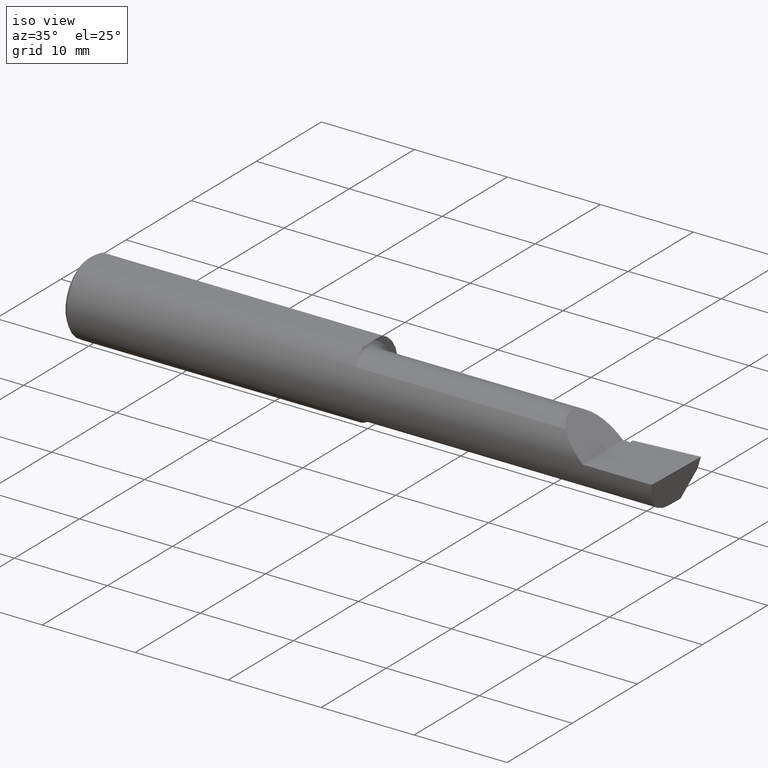
[diagram: clean part render]
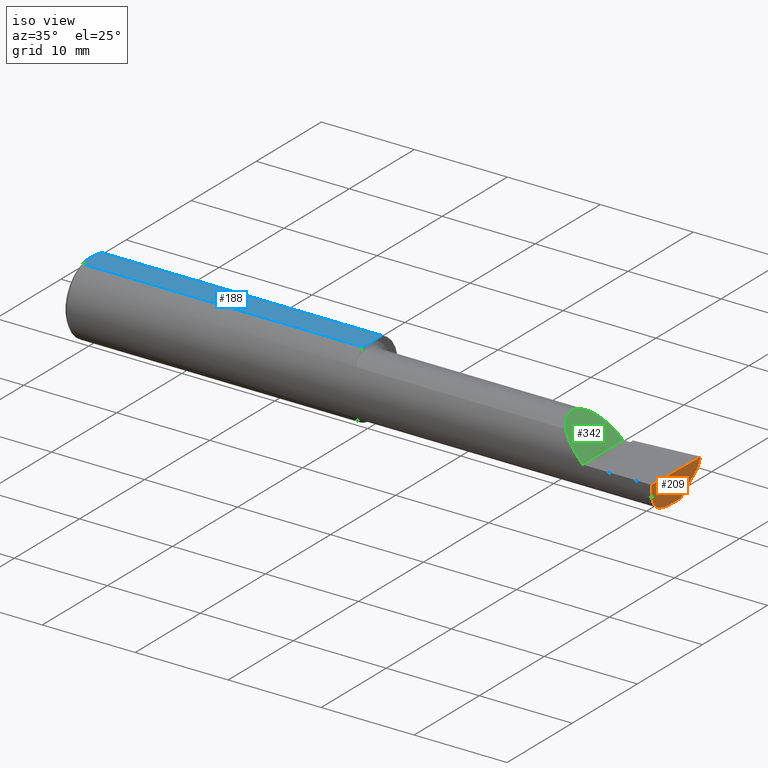
[diagram: same view with three faces highlighted in distinct colors, each labeled with its STEP entity id]
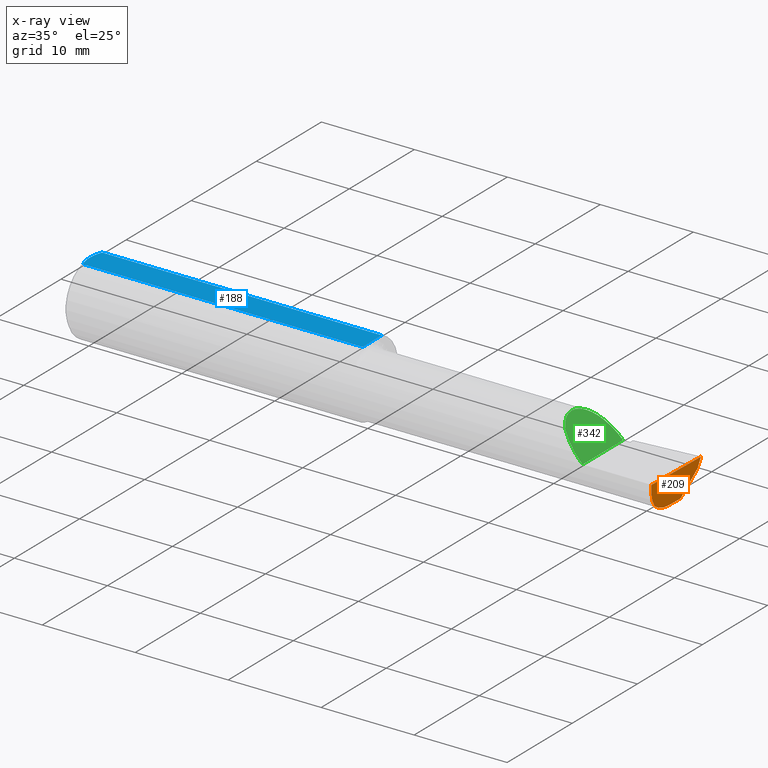
[diagram: x-ray of the same camera — body ghosted, the three highlighted faces saturated]
A machine part, iso view with three faces highlighted in distinct colors.
The next image is the same camera in x-ray (body ghosted, the three faces saturated) — at least one of them is partly hidden behind the body in this view.
Their STEP definitions:

[orange] entity #209 — the highlighted planar face has unit normal (-0.9922, 0.026, 0.1219).
#1 = FACE_OUTER_BOUND ( 'NONE', #441, .T. ) ;
#33 = CARTESIAN_POINT ( 'NONE',  ( 2.492458454588073469, -0.1561000000000000165, 6.904580041863401145E-17 ) ) ;
#44 = CARTESIAN_POINT ( 'NONE',  ( 2.481412959734991652, -0.1221769230769231412, -0.09715971113303906170 ) ) ;
#54 = CARTESIAN_POINT ( 'NONE',  ( 2.490006449155409474, -0.2497383096613859377, 6.928474670396028486E-17 ) ) ;
#85 = EDGE_CURVE ( 'NONE', #530, #246, #272, .T. ) ;
#89 = LINE ( 'NONE', #137, #306 ) ;
#95 = DIRECTION ( 'NONE',  ( 0.1219104985252713186, 0.000000000000000000, 0.9925410975618690346 ) ) ;
#132 = LINE ( 'NONE', #231, #575 ) ;
#137 = CARTESIAN_POINT ( 'NONE',  ( 2.494792847285499882, 0.1204783345406542638, -0.03995929106164489847 ) ) ;
#140 = ORIENTED_EDGE ( 'NONE', *, *, #618, .F. ) ;
#141 = DIRECTION ( 'NONE',  ( -0.02617694830786745225, -0.9996573249755573709, 0.000000000000000000 ) ) ;
#144 = ORIENTED_EDGE ( 'NONE', *, *, #392, .F. ) ;
#148 = ORIENTED_EDGE ( 'NONE', *, *, #285, .T. ) ;
#155 = CARTESIAN_POINT ( 'NONE',  ( 2.479563421481711494, -0.09875439382140582811, -0.1172113754642091638 ) ) ;
#177 = VECTOR ( 'NONE', #305, 39.37007874015748143 ) ;
#190 = CARTESIAN_POINT ( 'NONE',  ( 2.477531540255503373, -0.09048025621357887183, -0.1355180469804228571 ) ) ;
#195 = CARTESIAN_POINT ( 'NONE',  ( 2.500188977433809523, 0.1323605994646679385, 0.001440373173038011871 ) ) ;
#200 = ORIENTED_EDGE ( 'NONE', *, *, #85, .T. ) ;
#204 = VERTEX_POINT ( 'NONE', #388 ) ;
#209 = ADVANCED_FACE ( 'NONE', ( #1 ), #541, .F. ) ;
#231 = CARTESIAN_POINT ( 'NONE',  ( 2.479829128617947465, -0.03847180714400752488, -0.1279000000000000137 ) ) ;
#235 = CARTESIAN_POINT ( 'NONE',  ( 2.494489586192890851, 0.1184693294778164652, -0.04199999999999998873 ) ) ;
#241 = AXIS2_PLACEMENT_3D ( 'NONE', #190, #586, #95 ) ;
#246 = VERTEX_POINT ( 'NONE', #560 ) ;
#249 = EDGE_CURVE ( 'NONE', #393, #246, #252, .T. ) ;
#252 = LINE ( 'NONE', #54, #177 ) ;
#253 = VERTEX_POINT ( 'NONE', #556 ) ;
#272 = LINE ( 'NONE', #195, #511 ) ;
#277 = CARTESIAN_POINT ( 'NONE',  ( 2.488081956929748539, -0.1561000000000000443, -0.03563149886036989789 ) ) ;
#285 = EDGE_CURVE ( 'NONE', #579, #204, #328, .T. ) ;
#287 = DIRECTION ( 'NONE',  ( 0.1053106618241693021, 0.6976485211320172519, 0.7086580314005230807 ) ) ;
#305 = DIRECTION ( 'NONE',  ( 0.02617694830786745225, 0.9996573249755573709, -2.550926060774605708E-18 ) ) ;
#306 = VECTOR ( 'NONE', #287, 39.37007874015748143 ) ;
#310 =( BOUNDED_CURVE ( )  B_SPLINE_CURVE ( 3, ( #617, #525, #277, #33 ),
 .UNSPECIFIED., .F., .F. ) 
 B_SPLINE_CURVE_WITH_KNOTS ( ( 4, 4 ),
 ( 0.6889164556964199049, 1.360746882514756173 ),
 .UNSPECIFIED. ) 
 CURVE ( )  GEOMETRIC_REPRESENTATION_ITEM ( )  RATIONAL_B_SPLINE_CURVE ( ( 1.000000000000000000, 0.9627393467969931340, 0.9627393467969931340, 1.000000000000000000 ) ) 
 REPRESENTATION_ITEM ( '' )  );
#326 = ORIENTED_EDGE ( 'NONE', *, *, #249, .F. ) ;
#328 =( BOUNDED_CURVE ( )  B_SPLINE_CURVE ( 3, ( #603, #155, #400, #395 ),
 .UNSPECIFIED., .F., .F. ) 
 B_SPLINE_CURVE_WITH_KNOTS ( ( 4, 4 ),
 ( 5.785218908160204343, 6.493234751459727505 ),
 .UNSPECIFIED. ) 
 CURVE ( )  GEOMETRIC_REPRESENTATION_ITEM ( )  RATIONAL_B_SPLINE_CURVE ( ( 1.000000000000000000, 0.9586605761426438832, 0.9586605761426438832, 1.000000000000000000 ) ) 
 REPRESENTATION_ITEM ( '' )  );
#333 = DIRECTION ( 'NONE',  ( 0.1240019227989220402, 0.3022330132596647290, 0.9451342385281328307 ) ) ;
#388 = CARTESIAN_POINT ( 'NONE',  ( 2.479815297401247065, -0.03900000000000000688, -0.1279000000000000137 ) ) ;
#392 = EDGE_CURVE ( 'NONE', #579, #393, #310, .T. ) ;
#393 = VERTEX_POINT ( 'NONE', #572 ) ;
#395 = CARTESIAN_POINT ( 'NONE',  ( 2.479815297401247065, -0.03900000000000000688, -0.1279000000000000137 ) ) ;
#400 = CARTESIAN_POINT ( 'NONE',  ( 2.479007902537362362, -0.06983316589608469516, -0.1279000000000000137 ) ) ;
#419 = ORIENTED_EDGE ( 'NONE', *, *, #528, .T. ) ;
#441 = EDGE_LOOP ( 'NONE', ( #148, #140, #419, #200, #326, #144 ) ) ;
#511 = VECTOR ( 'NONE', #333, 39.37007874015748143 ) ;
#525 = CARTESIAN_POINT ( 'NONE',  ( 2.484257628330379664, -0.1443546689866653798, -0.06927151833753047994 ) ) ;
#528 = EDGE_CURVE ( 'NONE', #253, #530, #89, .T. ) ;
#530 = VERTEX_POINT ( 'NONE', #235 ) ;
#541 = PLANE ( 'NONE',  #241 ) ;
#556 = CARTESIAN_POINT ( 'NONE',  ( 2.481724351834623477, 0.03390384752482933362, -0.1279000000000000137 ) ) ;
#560 = CARTESIAN_POINT ( 'NONE',  ( 2.500000000000007550, 0.1319000000000240536, 7.610330918600022695E-14 ) ) ;
#572 = CARTESIAN_POINT ( 'NONE',  ( 2.492458454588073469, -0.1561000000000000165, 6.904580041863401145E-17 ) ) ;
#575 = VECTOR ( 'NONE', #141, 39.37007874015748854 ) ;
#579 = VERTEX_POINT ( 'NONE', #44 ) ;
#586 = DIRECTION ( 'NONE',  ( -0.9922060308645493931, 0.02598182930468769317, 0.1218693434051359437 ) ) ;
#603 = CARTESIAN_POINT ( 'NONE',  ( 2.481412959734991652, -0.1221769230769231412, -0.09715971113303906170 ) ) ;
#617 = CARTESIAN_POINT ( 'NONE',  ( 2.481412959734991652, -0.1221769230769231412, -0.09715971113303906170 ) ) ;
#618 = EDGE_CURVE ( 'NONE', #253, #204, #132, .T. ) ;

[blue] entity #188 — the highlighted planar face has unit normal (0, -0, -1).
#8 = VERTEX_POINT ( 'NONE', #558 ) ;
#10 = CARTESIAN_POINT ( 'NONE',  ( 0.01499999999999999424, 0.05756040305626779902, 0.1450999999999999512 ) ) ;
#13 = CARTESIAN_POINT ( 'NONE',  ( 1.199999999999999956, 0.2061000000000000332, 0.1450999999999999512 ) ) ;
#25 = ORIENTED_EDGE ( 'NONE', *, *, #457, .F. ) ;
#30 = CARTESIAN_POINT ( 'NONE',  ( 1.200682916200748851, -0.01309664387410302590, 0.1451000000000000068 ) ) ;
#31 = VERTEX_POINT ( 'NONE', #113 ) ;
#42 = CARTESIAN_POINT ( 'NONE',  ( 2.500000000000000000, 0.2061000000000000332, 0.1450999999999999512 ) ) ;
#47 = ORIENTED_EDGE ( 'NONE', *, *, #297, .F. ) ;
#60 = DIRECTION ( 'NONE',  ( -6.829619984160658046E-18, -1.000000000000000000, 1.656870447394628111E-16 ) ) ;
#66 = LINE ( 'NONE', #13, #81 ) ;
#81 = VECTOR ( 'NONE', #60, 39.37007874015748143 ) ;
#87 = CARTESIAN_POINT ( 'NONE',  ( 0.005011318927233133005, -0.01959047621504276041, 0.1450999999999999790 ) ) ;
#113 = CARTESIAN_POINT ( 'NONE',  ( 0.01499999999999999424, 0.05756040305626779902, 0.1450999999999999512 ) ) ;
#116 = EDGE_CURVE ( 'NONE', #31, #230, #138, .T. ) ;
#117 = DIRECTION ( 'NONE',  ( -1.000000000000000000, -0.000000000000000000, -0.000000000000000000 ) ) ;
#138 = LINE ( 'NONE', #471, #469 ) ;
#139 = EDGE_CURVE ( 'NONE', #594, #238, #376, .T. ) ;
#142 = DIRECTION ( 'NONE',  ( 0.000000000000000000, -1.656870447394628111E-16, -1.000000000000000000 ) ) ;
#168 = LINE ( 'NONE', #214, #323 ) ;
#183 = CARTESIAN_POINT ( 'NONE',  ( 1.199999999999999734, -0.001993101985760211466, 0.1450999999999999790 ) ) ;
#188 = ADVANCED_FACE ( 'NONE', ( #322 ), #482, .F. ) ;
#191 = ORIENTED_EDGE ( 'NONE', *, *, #116, .F. ) ;
#192 = CARTESIAN_POINT ( 'NONE',  ( 1.199999999999999956, 0.009212031693343570790, 0.1450999999999999790 ) ) ;
#194 = ORIENTED_EDGE ( 'NONE', *, *, #335, .F. ) ;
#207 = EDGE_LOOP ( 'NONE', ( #542, #47, #191, #194, #488, #25 ) ) ;
#214 = CARTESIAN_POINT ( 'NONE',  ( 0.000000000000000000, -0.05756040305626774350, 0.1451000000000000068 ) ) ;
#230 = VERTEX_POINT ( 'NONE', #352 ) ;
#238 = VERTEX_POINT ( 'NONE', #552 ) ;
#242 = CARTESIAN_POINT ( 'NONE',  ( 1.199999999999999956, 0.009212031693343570790, 0.1450999999999999790 ) ) ;
#271 = CARTESIAN_POINT ( 'NONE',  ( 0.01499999999999999424, -0.05756040305626774350, 0.1451000000000000068 ) ) ;
#297 = EDGE_CURVE ( 'NONE', #230, #594, #66, .T. ) ;
#322 = FACE_OUTER_BOUND ( 'NONE', #207, .T. ) ;
#323 = VECTOR ( 'NONE', #117, 39.37007874015748143 ) ;
#335 = EDGE_CURVE ( 'NONE', #8, #31, #501, .T. ) ;
#352 = CARTESIAN_POINT ( 'NONE',  ( 1.199999999999999956, 0.05756040305626777820, 0.1450999999999999512 ) ) ;
#355 = CARTESIAN_POINT ( 'NONE',  ( 0.01158831187866387301, 0.04830813087846569376, 0.1450999999999999512 ) ) ;
#376 = B_SPLINE_CURVE_WITH_KNOTS ( 'NONE', 3,
 ( #242, #183, #30, #519, #532, #538 ),
 .UNSPECIFIED., .F., .F.,
 ( 4, 2, 4 ),
 ( 0.01125575560715749712, 0.01210273852957650942, 0.01294972145199552345 ),
 .UNSPECIFIED. ) ;
#378 = CARTESIAN_POINT ( 'NONE',  ( 0.01499999999999999424, -0.05756040305626774350, 0.1451000000000000068 ) ) ;
#407 = CARTESIAN_POINT ( 'NONE',  ( 0.008823987512428459190, 0.03887788046871686748, 0.1450999999999999790 ) ) ;
#433 = CARTESIAN_POINT ( 'NONE',  ( 0.01161840624095555018, -0.04838974479540033430, 0.1451000000000000345 ) ) ;
#435 = AXIS2_PLACEMENT_3D ( 'NONE', #42, #142, #486 ) ;
#444 = DIRECTION ( 'NONE',  ( 1.000000000000000000, 0.000000000000000000, 0.000000000000000000 ) ) ;
#446 = CARTESIAN_POINT ( 'NONE',  ( 0.004000000000000188301, 0.009855731042683129120, 0.1450999999999999790 ) ) ;
#457 = EDGE_CURVE ( 'NONE', #238, #515, #168, .T. ) ;
#459 = CARTESIAN_POINT ( 'NONE',  ( 0.005030132703184950031, 0.01970541148932063169, 0.1451000000000000068 ) ) ;
#469 = VECTOR ( 'NONE', #444, 39.37007874015748143 ) ;
#471 = CARTESIAN_POINT ( 'NONE',  ( 0.000000000000000000, 0.05756040305626779902, 0.1450999999999999512 ) ) ;
#482 = PLANE ( 'NONE',  #435 ) ;
#485 = CARTESIAN_POINT ( 'NONE',  ( 0.004000000000000238608, 1.884449684559922719E-17, 0.1450999999999999790 ) ) ;
#486 = DIRECTION ( 'NONE',  ( 0.000000000000000000, 1.000000000000000000, -1.656870447394628111E-16 ) ) ;
#488 = ORIENTED_EDGE ( 'NONE', *, *, #547, .F. ) ;
#501 = B_SPLINE_CURVE_WITH_KNOTS ( 'NONE', 3,
 ( #505, #446, #459, #407, #355, #10 ),
 .UNSPECIFIED., .F., .F.,
 ( 4, 2, 4 ),
 ( 0.002889203944960327779, 0.003632851267233511670, 0.004376498589506695562 ),
 .UNSPECIFIED. ) ;
#505 = CARTESIAN_POINT ( 'NONE',  ( 0.004000000000000238608, 1.884449684559922719E-17, 0.1450999999999999790 ) ) ;
#515 = VERTEX_POINT ( 'NONE', #271 ) ;
#519 = CARTESIAN_POINT ( 'NONE',  ( 1.201345152486867685, -0.03531866109846591717, 0.1450999999999999790 ) ) ;
#522 = B_SPLINE_CURVE_WITH_KNOTS ( 'NONE', 3,
 ( #378, #433, #585, #87, #622, #485 ),
 .UNSPECIFIED., .F., .F.,
 ( 4, 2, 4 ),
 ( 0.001402484879066372495, 0.002145844412013350570, 0.002889203944960327779 ),
 .UNSPECIFIED. ) ;
#532 = CARTESIAN_POINT ( 'NONE',  ( 1.201279126842364597, -0.04643948704784824771, 0.1451000000000000068 ) ) ;
#538 = CARTESIAN_POINT ( 'NONE',  ( 1.200891796609107276, -0.05756040305628425807, 0.1451000000000000068 ) ) ;
#542 = ORIENTED_EDGE ( 'NONE', *, *, #139, .F. ) ;
#547 = EDGE_CURVE ( 'NONE', #515, #8, #522, .T. ) ;
#552 = CARTESIAN_POINT ( 'NONE',  ( 1.200891796609107276, -0.05756040305628425807, 0.1451000000000000068 ) ) ;
#558 = CARTESIAN_POINT ( 'NONE',  ( 0.004000000000000238608, 1.884449684559922719E-17, 0.1450999999999999790 ) ) ;
#585 = CARTESIAN_POINT ( 'NONE',  ( 0.008818052469297050708, -0.03886761757380372689, 0.1451000000000000068 ) ) ;
#594 = VERTEX_POINT ( 'NONE', #192 ) ;
#622 = CARTESIAN_POINT ( 'NONE',  ( 0.004000000000000188301, -0.009851916903761191377, 0.1450999999999999512 ) ) ;

[green] entity #342 — the highlighted planar face has unit normal (-0.7071, 0, -0.7071).
#18 = PLANE ( 'NONE',  #51 ) ;
#29 = CARTESIAN_POINT ( 'NONE',  ( 2.200000000000000178, -0.1560999999999999888, 9.797174393178826150E-17 ) ) ;
#51 = AXIS2_PLACEMENT_3D ( 'NONE', #198, #112, #114 ) ;
#82 = CARTESIAN_POINT ( 'NONE',  ( 2.102840288866959728, -0.1221769230769229747, 0.09715971113303922824 ) ) ;
#101 = ORIENTED_EDGE ( 'NONE', *, *, #382, .F. ) ;
#104 = ORIENTED_EDGE ( 'NONE', *, *, #593, .F. ) ;
#112 = DIRECTION ( 'NONE',  ( -0.7071067811865436870, 0.000000000000000000, -0.7071067811865513475 ) ) ;
#114 = DIRECTION ( 'NONE',  ( -0.7071067811865513475, 0.000000000000000000, 0.7071067811865436870 ) ) ;
#134 = CARTESIAN_POINT ( 'NONE',  ( 2.200000000000000178, 0.08889999999999993741, 9.797174393178826150E-17 ) ) ;
#157 = VECTOR ( 'NONE', #418, 39.37007874015748143 ) ;
#158 = CARTESIAN_POINT ( 'NONE',  ( 2.200000000000000178, 0.08889999999999993741, 9.797174393178826150E-17 ) ) ;
#198 = CARTESIAN_POINT ( 'NONE',  ( 2.200000000000000178, -0.2500000000000000555, 9.797174393178826150E-17 ) ) ;
#219 = LINE ( 'NONE', #264, #157 ) ;
#222 = CARTESIAN_POINT ( 'NONE',  ( 2.102840288866959728, -0.1221769230769229747, 0.09715971113303922824 ) ) ;
#233 = CARTESIAN_POINT ( 'NONE',  ( 2.073458044061706751, 0.08889999999999992353, 0.1265419559382922055 ) ) ;
#237 =( BOUNDED_CURVE ( )  B_SPLINE_CURVE ( 3, ( #29, #562, #324, #222 ),
 .UNSPECIFIED., .F., .F. ) 
 B_SPLINE_CURVE_WITH_KNOTS ( ( 4, 4 ),
 ( 4.712388980384689674, 5.384219407203026719 ),
 .UNSPECIFIED. ) 
 CURVE ( )  GEOMETRIC_REPRESENTATION_ITEM ( )  RATIONAL_B_SPLINE_CURVE ( ( 1.000000000000000000, 0.9627393467969931340, 0.9627393467969931340, 1.000000000000000000 ) ) 
 REPRESENTATION_ITEM ( '' )  );
#256 = VERTEX_POINT ( 'NONE', #158 ) ;
#264 = CARTESIAN_POINT ( 'NONE',  ( 2.200000000000000178, -0.2500000000000000555, 9.797174393178826150E-17 ) ) ;
#290 = VERTEX_POINT ( 'NONE', #592 ) ;
#311 = FACE_OUTER_BOUND ( 'NONE', #431, .T. ) ;
#324 = CARTESIAN_POINT ( 'NONE',  ( 2.130728481662468532, -0.1443546689866652410, 0.06927151833753059096 ) ) ;
#342 = ADVANCED_FACE ( 'NONE', ( #311 ), #18, .F. ) ;
#372 =( BOUNDED_CURVE ( )  B_SPLINE_CURVE ( 3, ( #82, #439, #233, #134 ),
 .UNSPECIFIED., .F., .F. ) 
 B_SPLINE_CURVE_WITH_KNOTS ( ( 4, 4 ),
 ( 5.575169463880064846, 7.853981633974482790 ),
 .UNSPECIFIED. ) 
 CURVE ( )  GEOMETRIC_REPRESENTATION_ITEM ( )  RATIONAL_B_SPLINE_CURVE ( ( 1.000000000000000000, 0.6120893875309946219, 0.6120893875309946219, 1.000000000000000000 ) ) 
 REPRESENTATION_ITEM ( '' )  );
#382 = EDGE_CURVE ( 'NONE', #290, #499, #237, .T. ) ;
#418 = DIRECTION ( 'NONE',  ( -0.000000000000000000, 1.000000000000000000, -0.000000000000000000 ) ) ;
#431 = EDGE_LOOP ( 'NONE', ( #104, #101, #523 ) ) ;
#439 = CARTESIAN_POINT ( 'NONE',  ( 2.020546539569986866, -0.02604885517094767886, 0.1794534604300112024 ) ) ;
#483 = EDGE_CURVE ( 'NONE', #290, #256, #219, .T. ) ;
#499 = VERTEX_POINT ( 'NONE', #565 ) ;
#523 = ORIENTED_EDGE ( 'NONE', *, *, #483, .T. ) ;
#562 = CARTESIAN_POINT ( 'NONE',  ( 2.164368501139629863, -0.1560999999999999333, 0.03563149886036996727 ) ) ;
#565 = CARTESIAN_POINT ( 'NONE',  ( 2.102840288866959728, -0.1221769230769229747, 0.09715971113303922824 ) ) ;
#592 = CARTESIAN_POINT ( 'NONE',  ( 2.200000000000000178, -0.1560999999999999888, 9.797174393178826150E-17 ) ) ;
#593 = EDGE_CURVE ( 'NONE', #499, #256, #372, .T. ) ;